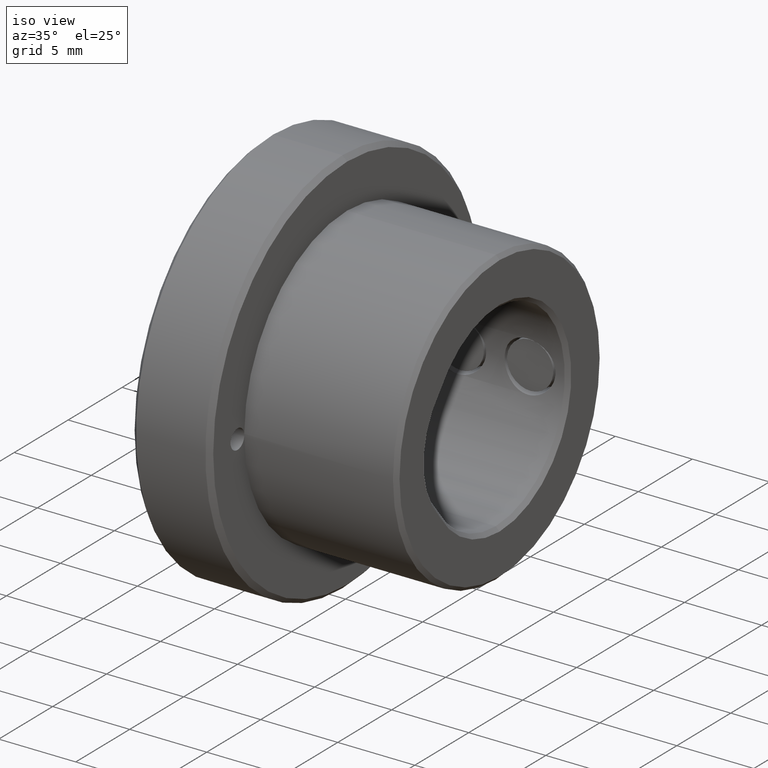
[diagram: clean part render]
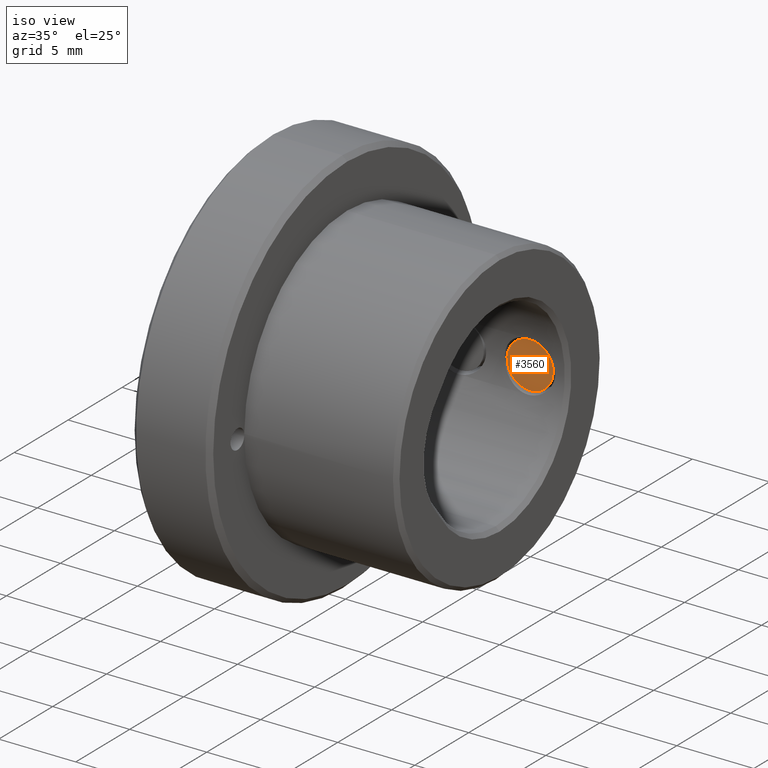
[diagram: same view with one face highlighted and labeled with its STEP entity id]
A machine part, iso view. The second image highlights one B-rep face of the part: STEP entity #3560.
In plain terms, the highlighted planar face has unit normal (0, -1, -0).
Its self-contained STEP definition (entity closure, byte-faithful):
#323 = CIRCLE ( 'NONE', #3180, 1.500000000000000222 ) ;
#393 = VERTEX_POINT ( 'NONE', #1032 ) ;
#962 = DIRECTION ( 'NONE',  ( 0.000000000000000000, -1.000000000000000000, 0.000000000000000000 ) ) ;
#1032 = CARTESIAN_POINT ( 'NONE',  ( 1.836970198721030181E-16, -1.000000000000000000, -1.500000000000000222 ) ) ;
#1287 = DIRECTION ( 'NONE',  ( 0.000000000000000000, -1.000000000000000000, 0.000000000000000000 ) ) ;
#1641 = EDGE_CURVE ( 'NONE', #393, #3322, #2869, .T. ) ;
#1761 = AXIS2_PLACEMENT_3D ( 'NONE', #4818, #4457, #2628 ) ;
#2628 = DIRECTION ( 'NONE',  ( 0.000000000000000000, 0.000000000000000000, -1.000000000000000000 ) ) ;
#2830 = ORIENTED_EDGE ( 'NONE', *, *, #1641, .T. ) ;
#2869 = CIRCLE ( 'NONE', #1761, 1.500000000000000222 ) ;
#2963 = CARTESIAN_POINT ( 'NONE',  ( 0.000000000000000000, -1.000000000000000000, 1.500000000000000222 ) ) ;
#3047 = FACE_OUTER_BOUND ( 'NONE', #4264, .T. ) ;
#3165 = EDGE_CURVE ( 'NONE', #3322, #393, #323, .T. ) ;
#3180 = AXIS2_PLACEMENT_3D ( 'NONE', #3946, #962, #4395 ) ;
#3322 = VERTEX_POINT ( 'NONE', #2963 ) ;
#3510 = DIRECTION ( 'NONE',  ( 0.000000000000000000, -0.000000000000000000, -1.000000000000000000 ) ) ;
#3558 = CARTESIAN_POINT ( 'NONE',  ( 0.000000000000000000, -1.000000000000000000, 0.000000000000000000 ) ) ;
#3560 = ADVANCED_FACE ( 'NONE', ( #3047 ), #4575, .T. ) ;
#3946 = CARTESIAN_POINT ( 'NONE',  ( 0.000000000000000000, -1.000000000000000000, 0.000000000000000000 ) ) ;
#4158 = AXIS2_PLACEMENT_3D ( 'NONE', #3558, #1287, #3510 ) ;
#4264 = EDGE_LOOP ( 'NONE', ( #4807, #2830 ) ) ;
#4395 = DIRECTION ( 'NONE',  ( 0.000000000000000000, 0.000000000000000000, -1.000000000000000000 ) ) ;
#4457 = DIRECTION ( 'NONE',  ( 0.000000000000000000, -1.000000000000000000, 0.000000000000000000 ) ) ;
#4575 = PLANE ( 'NONE',  #4158 ) ;
#4807 = ORIENTED_EDGE ( 'NONE', *, *, #3165, .T. ) ;
#4818 = CARTESIAN_POINT ( 'NONE',  ( 0.000000000000000000, -1.000000000000000000, 0.000000000000000000 ) ) ;